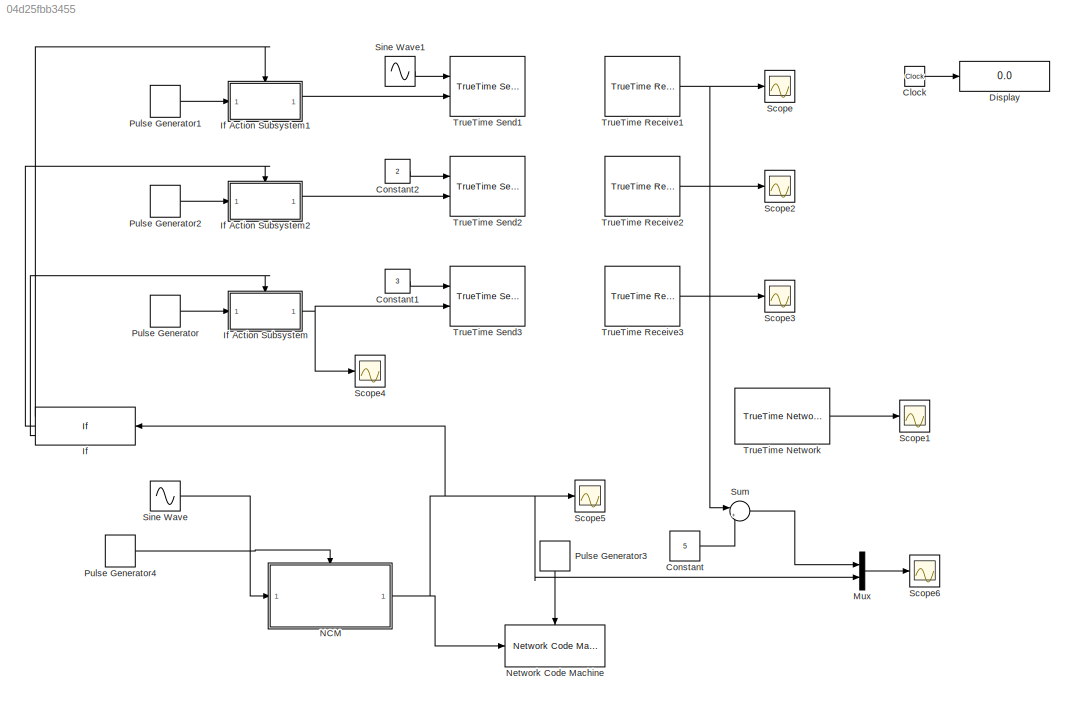
MODEL slx_04d25fbb3455
KIND model
BLOCK [Clock] Clock
BLOCK [Constant] Constant
  Value = 5
BLOCK [Constant] Constant1
  Value = 3
BLOCK [Constant] Constant2
  Value = 2
BLOCK [Display] Display
  Decimation = 1
  Ports = [1]
BLOCK [If] If
  ElseIfExpressions = u1==1,u1==2
  IfExpression = u1 == 0
  Ports = [1, 3]
  ShowElse = off
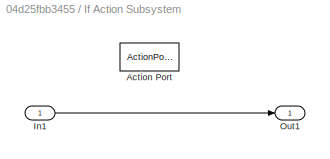
BLOCK [SubSystem] If Action Subsystem
  FunctionWithSeparateData = off
  MaskHideContents = off
  MinAlgLoopOccurrences = off
  Opaque = off
  Ports = [1, 1, 0, 0, 0, 0, 0, 1]
  PropExecContextOutsideSubsystem = off
  RTWSystemCode = Auto
  RequestExecContextInheritance = off
  TreatAsAtomicUnit = on
  Variant = off
BLOCK [ActionPort] If Action Subsystem/Action Port
  ActionType = elseif
BLOCK [Inport] If Action Subsystem/In1
  IconDisplay = Port number
BLOCK [Outport] If Action Subsystem/Out1
  IconDisplay = Port number
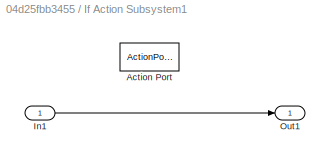
BLOCK [SubSystem] If Action Subsystem1
  FunctionWithSeparateData = off
  MaskHideContents = off
  MinAlgLoopOccurrences = off
  Opaque = off
  Ports = [1, 1, 0, 0, 0, 0, 0, 1]
  PropExecContextOutsideSubsystem = off
  RTWSystemCode = Auto
  RequestExecContextInheritance = off
  TreatAsAtomicUnit = on
  Variant = off
BLOCK [ActionPort] If Action Subsystem1/Action Port
  ActionType = then
BLOCK [Inport] If Action Subsystem1/In1
  IconDisplay = Port number
BLOCK [Outport] If Action Subsystem1/Out1
  IconDisplay = Port number
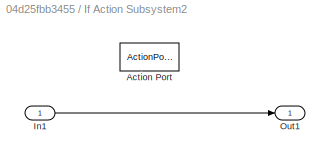
BLOCK [SubSystem] If Action Subsystem2
  FunctionWithSeparateData = off
  MaskHideContents = off
  MinAlgLoopOccurrences = off
  Opaque = off
  Ports = [1, 1, 0, 0, 0, 0, 0, 1]
  PropExecContextOutsideSubsystem = off
  RTWSystemCode = Auto
  RequestExecContextInheritance = off
  TreatAsAtomicUnit = on
  Variant = off
BLOCK [ActionPort] If Action Subsystem2/Action Port
  ActionType = elseif
BLOCK [Inport] If Action Subsystem2/In1
  IconDisplay = Port number
BLOCK [Outport] If Action Subsystem2/Out1
  IconDisplay = Port number
BLOCK [Mux] Mux
  DisplayOption = bar
  Inputs = 2
  Ports = [2, 1]
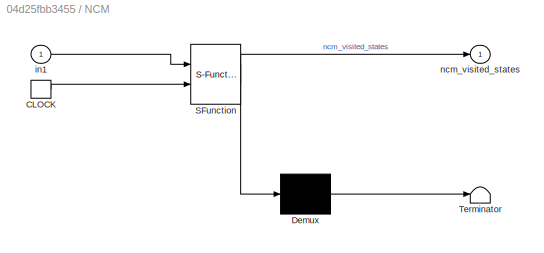
BLOCK [SubSystem] NCM
  ErrorFcn = Stateflow.Translate.translate
  FunctionWithSeparateData = off
  MaskDescription = Stateflow diagram
  MaskDisplay = plot(sf('Private','sfblk','xIcon'),sf('Private','sfblk','yIcon'));text(0.5,0,sf('Private', 'sfblk', 'tIcon'),'HorizontalAl','Center','VerticalAl','Bottom');
  MaskHideContents = off
  MaskIconFrame = off
  MaskIconOpaque = off
  MaskIconRotate = none
  MaskIconUnits = normalized
  MaskPortRotate = default
  MaskSelfModifiable = on
  MaskType = Stateflow
  MinAlgLoopOccurrences = off
  Opaque = off
  PermitHierarchicalResolution = ParametersOnly
  Ports = [1, 1, 0, 1]
  PropExecContextOutsideSubsystem = off
  RTWSystemCode = Auto
  RequestExecContextInheritance = off
  SFBlockType = Chart
  TreatAsAtomicUnit = on
  Variant = off
BLOCK [Demux] NCM/ Demux 
  Outputs = 1
  Ports = [1, 1]
BLOCK [S-Function] NCM/ SFunction 
  EnableBusSupport = on
  FunctionName = sf_sfun
  PortCounts = [2 2]
  Ports = [2, 2]
  SFunctionDeploymentMode = off
  Tag = Stateflow S-Function ncmexample 3
BLOCK [Terminator] NCM/ Terminator 
BLOCK [TriggerPort] NCM/CLOCK
  Ports = [0, 1]
  ShowOutputPort = on
  TriggerType = falling
BLOCK [Inport] NCM/in1
  IconDisplay = Port number
BLOCK [Outport] NCM/ncm_visited_states
  IconDisplay = Port number
BLOCK [Reference] Network Code Machine  REF=NCM/Network Code Machine
  Ports = [1, 0, 0, 1]
  SourceBlock = NCM/Network Code Machine
  SourceType = SubSystem
BLOCK [DiscretePulseGenerator] Pulse Generator
  Period = 0.5
  Ports = [0, 1]
  PulseType = Time based
  PulseWidth = 50
BLOCK [DiscretePulseGenerator] Pulse Generator1
  Period = 0.5
  Ports = [0, 1]
  PulseType = Time based
  PulseWidth = 50
BLOCK [DiscretePulseGenerator] Pulse Generator2
  Period = 0.5
  Ports = [0, 1]
  PulseType = Time based
  PulseWidth = 50
BLOCK [DiscretePulseGenerator] Pulse Generator3
  Period = 0.25
  PhaseDelay = .5
  Ports = [0, 1]
  PulseType = Time based
  PulseWidth = 50
BLOCK [DiscretePulseGenerator] Pulse Generator4
  Period = 0.25
  Ports = [0, 1]
  PulseType = Time based
  PulseWidth = 50
BLOCK [Scope] Scope
  DataFormat = StructureWithTime
  Decimation = 1
  Grid = on
  LimitDataPoints = on
  MaxDataPoints = 5000
  Ports = [1]
  SampleInput = off
  SampleTime = -1
  SaveName = ScopeData
  SaveToWorkspace = off
  ShowLegends = off
  TickLabels = OneTimeTick
  TimeRange = auto
  YMax = 3
  YMin = 0
  ZoomMode = on
BLOCK [Scope] Scope1
  DataFormat = StructureWithTime
  Decimation = 1
  Grid = on
  LimitDataPoints = on
  MaxDataPoints = 5000
  Ports = [1]
  SampleInput = off
  SampleTime = -1
  SaveName = ScopeData1
  SaveToWorkspace = off
  ShowLegends = off
  TickLabels = OneTimeTick
  TimeRange = auto
  YMax = 3.8125
  YMin = 0.6875
  ZoomMode = on
BLOCK [Scope] Scope2
  DataFormat = StructureWithTime
  Decimation = 1
  Grid = on
  LimitDataPoints = on
  MaxDataPoints = 5000
  Ports = [1]
  SampleInput = off
  SampleTime = -1
  SaveName = ScopeData2
  SaveToWorkspace = off
  ShowLegends = off
  TickLabels = OneTimeTick
  TimeRange = auto
  YMax = 10
  YMin = -10
  ZoomMode = on
BLOCK [Scope] Scope3
  DataFormat = StructureWithTime
  Decimation = 1
  Grid = on
  LimitDataPoints = on
  MaxDataPoints = 5000
  Ports = [1]
  SampleInput = off
  SampleTime = -1
  SaveName = ScopeData3
  SaveToWorkspace = off
  ShowLegends = off
  TickLabels = OneTimeTick
  TimeRange = auto
  YMax = 10
  YMin = -10
  ZoomMode = on
BLOCK [Scope] Scope4
  DataFormat = StructureWithTime
  Decimation = 1
  Grid = on
  LimitDataPoints = on
  MaxDataPoints = 5000
  Ports = [1]
  SampleInput = off
  SampleTime = -1
  SaveName = ScopeData4
  SaveToWorkspace = off
  ShowLegends = off
  TickLabels = OneTimeTick
  TimeRange = auto
  YMax = 10
  YMin = -10
  ZoomMode = on
BLOCK [Scope] Scope5
  DataFormat = StructureWithTime
  Decimation = 1
  Grid = on
  LimitDataPoints = on
  MaxDataPoints = 5000
  Ports = [1]
  SampleInput = off
  SampleTime = -1
  SaveName = ScopeData5
  SaveToWorkspace = off
  ShowLegends = off
  TickLabels = OneTimeTick
  TimeRange = auto
  YMax = 10
  YMin = -10
  ZoomMode = on
BLOCK [Scope] Scope6
  DataFormat = StructureWithTime
  Decimation = 1
  Grid = on
  LimitDataPoints = on
  MaxDataPoints = 5000
  Ports = [1]
  SampleInput = off
  SampleTime = -1
  SaveName = ScopeData6
  SaveToWorkspace = off
  ShowLegends = off
  TickLabels = OneTimeTick
  TimeRange = auto
  YMax = 3
  YMin = 0
  ZoomMode = on
BLOCK [Sin] Sine Wave
  Ports = [0, 1]
  SampleTime = 0
BLOCK [Sin] Sine Wave1
  Ports = [0, 1]
  SampleTime = 0
BLOCK [Sum] Sum
  IconShape = round
  InputSameDT = off
  Inputs = |++
  OutDataTypeStr = Inherit: Inherit via internal rule
  Ports = [2, 1]
  SaturateOnIntegerOverflow = off
BLOCK [Reference] TrueTime Network  REF=truetime/TrueTime Network  (lib defined in slx_0362a698a4ec)
  NIT = 0
  Ports = [0, 1]
  QSortMode = FIFO
  SourceBlock = truetime/TrueTime Network
  SourceType = Real-Time Network
  bandwidths = [0.5 0.5]
  buftype = Common buffer
  dynSchedule = 0
  irtSchedule = 0
  lossprob = 0
  memsize = 80000
  miniSlotSize = 0
  minsize = 512
  nnodes = 3
  nodeGraph = 0
  nrtLength = 0
  nwnbr = 1
  nwtype = NCM
  overflow = Retransmit
  rate = 10000000
  schedule = [1 1 2]
  scheduleoutput = on
  seed = 0
  slotsize = 512
  sync = 0
BLOCK [Reference] TrueTime Receive1  REF=truetime/TrueTime Receive  (lib defined in slx_0362a698a4ec)
  Ports = [0, 1]
  SourceBlock = truetime/TrueTime Receive
  lengthoutput = off
  msgIDoutput = off
  nwnbr = 1
  outdim = 1
  priorityoutput = off
  receiver = 1
  senderoutput = off
  signalpoweroutput = off
  timestampoutput = off
  triggeroutput = off
BLOCK [Reference] TrueTime Receive2  REF=truetime/TrueTime Receive  (lib defined in slx_0362a698a4ec)
  Ports = [0, 1]
  SourceBlock = truetime/TrueTime Receive
  lengthoutput = off
  msgIDoutput = off
  nwnbr = 1
  outdim = 1
  priorityoutput = off
  receiver = 2
  senderoutput = off
  signalpoweroutput = off
  timestampoutput = off
  triggeroutput = off
BLOCK [Reference] TrueTime Receive3  REF=truetime/TrueTime Receive  (lib defined in slx_0362a698a4ec)
  Ports = [0, 1]
  SourceBlock = truetime/TrueTime Receive
  lengthoutput = off
  msgIDoutput = off
  nwnbr = 1
  outdim = 1
  priorityoutput = off
  receiver = 3
  senderoutput = off
  signalpoweroutput = off
  timestampoutput = off
  triggeroutput = off
BLOCK [Reference] TrueTime Send1  REF=truetime/TrueTime Send  (lib defined in slx_0362a698a4ec)
  Ports = [2]
  SourceBlock = truetime/TrueTime Send
  dynamicSegment = dynamic
  indim = 1
  length = 1000
  lengthsource = internal
  msgID = 0
  msgIDsource = internal
  nwnbr = 1
  prio = 1
  priosource = internal
  receiver = 1
  recsource = internal
  sender = 1
  trigger = falling
BLOCK [Reference] TrueTime Send2  REF=truetime/TrueTime Send  (lib defined in slx_0362a698a4ec)
  Ports = [2]
  SourceBlock = truetime/TrueTime Send
  dynamicSegment = dynamic
  indim = 1
  length = 1000
  lengthsource = internal
  msgID = 0
  msgIDsource = internal
  nwnbr = 1
  prio = 1
  priosource = internal
  receiver = 1
  recsource = internal
  sender = 2
  trigger = falling
BLOCK [Reference] TrueTime Send3  REF=truetime/TrueTime Send  (lib defined in slx_0362a698a4ec)
  Ports = [2]
  SourceBlock = truetime/TrueTime Send
  dynamicSegment = dynamic
  indim = 1
  length = 1000
  lengthsource = internal
  msgID = 0
  msgIDsource = internal
  nwnbr = 1
  prio = 1
  priosource = internal
  receiver = 1
  recsource = internal
  sender = 3
  trigger = falling
LINE Clock:1 -> Display:1
LINE Constant1:1 -> TrueTime Send3:1
LINE Constant2:1 -> TrueTime Send2:1
LINE Constant:1 -> Sum:2
LINE If Action Subsystem/In1:1 -> If Action Subsystem/Out1:1
LINE If Action Subsystem1/In1:1 -> If Action Subsystem1/Out1:1
LINE If Action Subsystem1:1 -> TrueTime Send1:2
LINE If Action Subsystem2/In1:1 -> If Action Subsystem2/Out1:1
LINE If Action Subsystem2:1 -> TrueTime Send2:2
NET If Action Subsystem:1 -> Scope4:1, TrueTime Send3:2
LINE If:1 -> If Action Subsystem1:ifaction
LINE If:2 -> If Action Subsystem2:ifaction
LINE If:3 -> If Action Subsystem:ifaction
LINE Mux:1 -> Scope6:1
NET NCM:1 -> If:1, Mux:2, Network Code Machine:1, Scope5:1
LINE Pulse Generator1:1 -> If Action Subsystem1:1
LINE Pulse Generator2:1 -> If Action Subsystem2:1
LINE Pulse Generator3:1 -> Network Code Machine:trigger
LINE Pulse Generator4:1 -> NCM:trigger
LINE Pulse Generator:1 -> If Action Subsystem:1
LINE Sine Wave1:1 -> TrueTime Send1:1
LINE Sine Wave:1 -> NCM:1
LINE Sum:1 -> Mux:1
LINE TrueTime Network:1 -> Scope1:1
NET TrueTime Receive1:1 -> Scope:1, Sum:1
LINE TrueTime Receive2:1 -> Scope2:1
LINE TrueTime Receive3:1 -> Scope3:1
note: NET lines group one-source signal fan-out (src -> all destinations, sorted); 1:1 wires keep LINE
